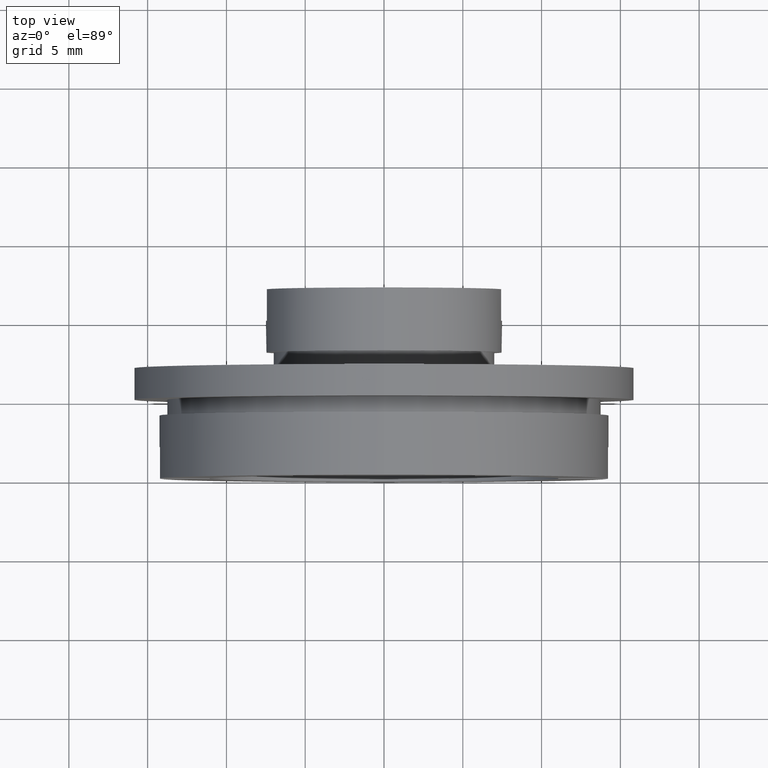
[diagram: clean part render]
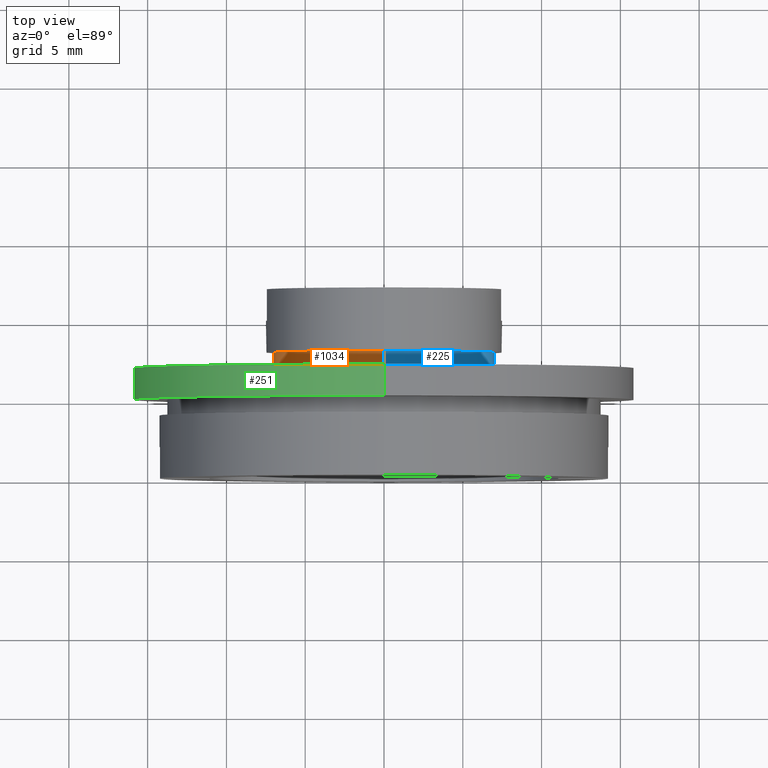
[diagram: same view with three faces highlighted in distinct colors, each labeled with its STEP entity id]
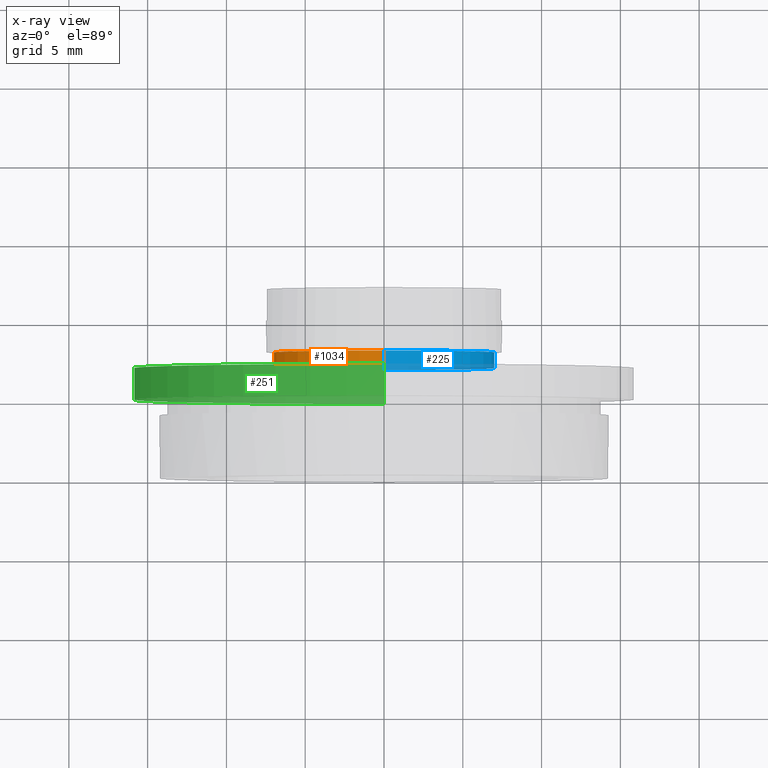
[diagram: x-ray of the same camera — body ghosted, the three highlighted faces saturated]
A machine part, top view with three faces highlighted in distinct colors.
The next image is the same camera in x-ray (body ghosted, the three faces saturated) — at least one of them is partly hidden behind the body in this view.
Their STEP definitions:

[orange] entity #1034 — the highlighted cylindrical surface (partial cylindrical patch) has radius 7 mm, axis along (-0, 1, -0).
#20 = CARTESIAN_POINT ( 'NONE',  ( 0.0000000000000000000, 22.67749945107591400, 0.0000000000000000000 ) ) ;
#31 = ORIENTED_EDGE ( 'NONE', *, *, #499, .F. ) ;
#55 = CIRCLE ( 'NONE', #831, 6.999999999999999100 ) ;
#69 = EDGE_CURVE ( 'NONE', #726, #1145, #1326, .T. ) ;
#83 = DIRECTION ( 'NONE',  ( -0.0000000000000000000, 1.000000000000000000, -0.0000000000000000000 ) ) ;
#166 = LINE ( 'NONE', #1010, #196 ) ;
#170 = DIRECTION ( 'NONE',  ( -0.0000000000000000000, 1.000000000000000000, -0.0000000000000000000 ) ) ;
#185 = CARTESIAN_POINT ( 'NONE',  ( 8.572527594031471200E-016, 7.000000000000002700, -6.999999999999998200 ) ) ;
#194 = CYLINDRICAL_SURFACE ( 'NONE', #974, 6.999999999999999100 ) ;
#196 = VECTOR ( 'NONE', #83, 1000.000000000000000 ) ;
#221 = CARTESIAN_POINT ( 'NONE',  ( 0.0000000000000000000, 7.000000000000002700, 0.0000000000000000000 ) ) ;
#240 = CARTESIAN_POINT ( 'NONE',  ( 0.0000000000000000000, 8.000000000000000000, 0.0000000000000000000 ) ) ;
#241 = ORIENTED_EDGE ( 'NONE', *, *, #69, .T. ) ;
#288 = EDGE_CURVE ( 'NONE', #726, #1121, #166, .T. ) ;
#291 = ORIENTED_EDGE ( 'NONE', *, *, #1272, .T. ) ;
#369 = FACE_OUTER_BOUND ( 'NONE', #1208, .T. ) ;
#424 = DIRECTION ( 'NONE',  ( -0.0000000000000000000, 1.000000000000000000, -0.0000000000000000000 ) ) ;
#428 = CARTESIAN_POINT ( 'NONE',  ( 0.0000000000000000000, 22.67749945107591400, 6.999999999999999100 ) ) ;
#446 = CARTESIAN_POINT ( 'NONE',  ( 0.0000000000000000000, 8.000000000000000000, 6.999999999999999100 ) ) ;
#499 = EDGE_CURVE ( 'NONE', #1121, #1299, #55, .T. ) ;
#648 = DIRECTION ( 'NONE',  ( 0.0000000000000000000, 0.0000000000000000000, 1.000000000000000000 ) ) ;
#690 = LINE ( 'NONE', #428, #790 ) ;
#726 = VERTEX_POINT ( 'NONE', #185 ) ;
#790 = VECTOR ( 'NONE', #424, 1000.000000000000000 ) ;
#831 = AXIS2_PLACEMENT_3D ( 'NONE', #240, #170, #1308 ) ;
#952 = CARTESIAN_POINT ( 'NONE',  ( 0.0000000000000000000, 7.000000000000002700, 6.999999999999998200 ) ) ;
#974 = AXIS2_PLACEMENT_3D ( 'NONE', #20, #1178, #648 ) ;
#997 = DIRECTION ( 'NONE',  ( -0.0000000000000000000, 1.000000000000000000, -0.0000000000000000000 ) ) ;
#1010 = CARTESIAN_POINT ( 'NONE',  ( 8.572527594031472200E-016, 22.67749945107591400, -6.999999999999999100 ) ) ;
#1034 = ADVANCED_FACE ( 'NONE', ( #369 ), #194, .T. ) ;
#1051 = AXIS2_PLACEMENT_3D ( 'NONE', #221, #997, #1282 ) ;
#1121 = VERTEX_POINT ( 'NONE', #1255 ) ;
#1145 = VERTEX_POINT ( 'NONE', #952 ) ;
#1178 = DIRECTION ( 'NONE',  ( -0.0000000000000000000, 1.000000000000000000, -0.0000000000000000000 ) ) ;
#1208 = EDGE_LOOP ( 'NONE', ( #1290, #241, #291, #31 ) ) ;
#1255 = CARTESIAN_POINT ( 'NONE',  ( 8.572527594031472200E-016, 8.000000000000000000, -6.999999999999999100 ) ) ;
#1272 = EDGE_CURVE ( 'NONE', #1145, #1299, #690, .T. ) ;
#1282 = DIRECTION ( 'NONE',  ( 0.0000000000000000000, 0.0000000000000000000, 1.000000000000000000 ) ) ;
#1290 = ORIENTED_EDGE ( 'NONE', *, *, #288, .F. ) ;
#1299 = VERTEX_POINT ( 'NONE', #446 ) ;
#1308 = DIRECTION ( 'NONE',  ( 0.0000000000000000000, 0.0000000000000000000, 1.000000000000000000 ) ) ;
#1326 = CIRCLE ( 'NONE', #1051, 6.999999999999998200 ) ;

[blue] entity #225 — the highlighted cylindrical surface (partial cylindrical patch) has radius 7 mm, axis along (-0, 1, -0).
#83 = DIRECTION ( 'NONE',  ( -0.0000000000000000000, 1.000000000000000000, -0.0000000000000000000 ) ) ;
#99 = AXIS2_PLACEMENT_3D ( 'NONE', #756, #463, #381 ) ;
#166 = LINE ( 'NONE', #1010, #196 ) ;
#185 = CARTESIAN_POINT ( 'NONE',  ( 8.572527594031471200E-016, 7.000000000000002700, -6.999999999999998200 ) ) ;
#196 = VECTOR ( 'NONE', #83, 1000.000000000000000 ) ;
#205 = CIRCLE ( 'NONE', #1268, 6.999999999999999100 ) ;
#225 = ADVANCED_FACE ( 'NONE', ( #1216 ), #956, .T. ) ;
#239 = ORIENTED_EDGE ( 'NONE', *, *, #842, .F. ) ;
#257 = DIRECTION ( 'NONE',  ( -0.0000000000000000000, 1.000000000000000000, -0.0000000000000000000 ) ) ;
#270 = ORIENTED_EDGE ( 'NONE', *, *, #480, .T. ) ;
#288 = EDGE_CURVE ( 'NONE', #726, #1121, #166, .T. ) ;
#293 = EDGE_LOOP ( 'NONE', ( #270, #740, #239, #389 ) ) ;
#381 = DIRECTION ( 'NONE',  ( 0.0000000000000000000, 0.0000000000000000000, 1.000000000000000000 ) ) ;
#389 = ORIENTED_EDGE ( 'NONE', *, *, #1272, .F. ) ;
#424 = DIRECTION ( 'NONE',  ( -0.0000000000000000000, 1.000000000000000000, -0.0000000000000000000 ) ) ;
#428 = CARTESIAN_POINT ( 'NONE',  ( 0.0000000000000000000, 22.67749945107591400, 6.999999999999999100 ) ) ;
#446 = CARTESIAN_POINT ( 'NONE',  ( 0.0000000000000000000, 8.000000000000000000, 6.999999999999999100 ) ) ;
#463 = DIRECTION ( 'NONE',  ( -0.0000000000000000000, 1.000000000000000000, -0.0000000000000000000 ) ) ;
#480 = EDGE_CURVE ( 'NONE', #1145, #726, #936, .T. ) ;
#690 = LINE ( 'NONE', #428, #790 ) ;
#726 = VERTEX_POINT ( 'NONE', #185 ) ;
#739 = AXIS2_PLACEMENT_3D ( 'NONE', #992, #1279, #886 ) ;
#740 = ORIENTED_EDGE ( 'NONE', *, *, #288, .T. ) ;
#756 = CARTESIAN_POINT ( 'NONE',  ( 0.0000000000000000000, 22.67749945107591400, 0.0000000000000000000 ) ) ;
#790 = VECTOR ( 'NONE', #424, 1000.000000000000000 ) ;
#842 = EDGE_CURVE ( 'NONE', #1299, #1121, #205, .T. ) ;
#886 = DIRECTION ( 'NONE',  ( 0.0000000000000000000, 0.0000000000000000000, 1.000000000000000000 ) ) ;
#917 = CARTESIAN_POINT ( 'NONE',  ( 0.0000000000000000000, 8.000000000000000000, 0.0000000000000000000 ) ) ;
#936 = CIRCLE ( 'NONE', #739, 6.999999999999998200 ) ;
#952 = CARTESIAN_POINT ( 'NONE',  ( 0.0000000000000000000, 7.000000000000002700, 6.999999999999998200 ) ) ;
#956 = CYLINDRICAL_SURFACE ( 'NONE', #99, 6.999999999999999100 ) ;
#992 = CARTESIAN_POINT ( 'NONE',  ( 0.0000000000000000000, 7.000000000000002700, 0.0000000000000000000 ) ) ;
#1010 = CARTESIAN_POINT ( 'NONE',  ( 8.572527594031472200E-016, 22.67749945107591400, -6.999999999999999100 ) ) ;
#1121 = VERTEX_POINT ( 'NONE', #1255 ) ;
#1145 = VERTEX_POINT ( 'NONE', #952 ) ;
#1150 = DIRECTION ( 'NONE',  ( 0.0000000000000000000, 0.0000000000000000000, 1.000000000000000000 ) ) ;
#1216 = FACE_OUTER_BOUND ( 'NONE', #293, .T. ) ;
#1255 = CARTESIAN_POINT ( 'NONE',  ( 8.572527594031472200E-016, 8.000000000000000000, -6.999999999999999100 ) ) ;
#1268 = AXIS2_PLACEMENT_3D ( 'NONE', #917, #257, #1150 ) ;
#1272 = EDGE_CURVE ( 'NONE', #1145, #1299, #690, .T. ) ;
#1279 = DIRECTION ( 'NONE',  ( -0.0000000000000000000, 1.000000000000000000, -0.0000000000000000000 ) ) ;
#1299 = VERTEX_POINT ( 'NONE', #446 ) ;

[green] entity #251 — the highlighted cylindrical surface (partial cylindrical patch) has radius 15.875 mm, axis along (-0, 1, -0).
#70 = FACE_OUTER_BOUND ( 'NONE', #747, .T. ) ;
#76 = LINE ( 'NONE', #135, #147 ) ;
#89 = CYLINDRICAL_SURFACE ( 'NONE', #1038, 15.87499999999999600 ) ;
#100 = EDGE_CURVE ( 'NONE', #749, #667, #349, .T. ) ;
#135 = CARTESIAN_POINT ( 'NONE',  ( 1.944126793646422800E-015, 22.67749945107591400, -15.87499999999999600 ) ) ;
#138 = CARTESIAN_POINT ( 'NONE',  ( 1.944126793646422800E-015, 5.000000000000000900, -15.87499999999999600 ) ) ;
#139 = DIRECTION ( 'NONE',  ( 0.0000000000000000000, 0.0000000000000000000, 1.000000000000000000 ) ) ;
#147 = VECTOR ( 'NONE', #570, 1000.000000000000000 ) ;
#200 = CARTESIAN_POINT ( 'NONE',  ( 0.0000000000000000000, 6.999999999999999100, 15.87499999999999600 ) ) ;
#251 = ADVANCED_FACE ( 'NONE', ( #70 ), #89, .T. ) ;
#262 = CARTESIAN_POINT ( 'NONE',  ( 0.0000000000000000000, 6.999999999999999100, 0.0000000000000000000 ) ) ;
#284 = LINE ( 'NONE', #1336, #1297 ) ;
#286 = EDGE_CURVE ( 'NONE', #749, #505, #76, .T. ) ;
#349 = CIRCLE ( 'NONE', #813, 15.87499999999999600 ) ;
#358 = ORIENTED_EDGE ( 'NONE', *, *, #100, .T. ) ;
#379 = CARTESIAN_POINT ( 'NONE',  ( 1.944126793646422800E-015, 6.999999999999999100, -15.87499999999999600 ) ) ;
#505 = VERTEX_POINT ( 'NONE', #379 ) ;
#507 = VERTEX_POINT ( 'NONE', #200 ) ;
#512 = DIRECTION ( 'NONE',  ( 0.0000000000000000000, 0.0000000000000000000, 1.000000000000000000 ) ) ;
#570 = DIRECTION ( 'NONE',  ( -0.0000000000000000000, 1.000000000000000000, -0.0000000000000000000 ) ) ;
#608 = CARTESIAN_POINT ( 'NONE',  ( 0.0000000000000000000, 22.67749945107591400, 0.0000000000000000000 ) ) ;
#657 = ORIENTED_EDGE ( 'NONE', *, *, #286, .F. ) ;
#667 = VERTEX_POINT ( 'NONE', #1111 ) ;
#689 = CIRCLE ( 'NONE', #1323, 15.87499999999999600 ) ;
#699 = ORIENTED_EDGE ( 'NONE', *, *, #816, .T. ) ;
#702 = ORIENTED_EDGE ( 'NONE', *, *, #718, .F. ) ;
#718 = EDGE_CURVE ( 'NONE', #505, #507, #689, .T. ) ;
#747 = EDGE_LOOP ( 'NONE', ( #657, #358, #699, #702 ) ) ;
#749 = VERTEX_POINT ( 'NONE', #138 ) ;
#805 = DIRECTION ( 'NONE',  ( 0.0000000000000000000, 0.0000000000000000000, 1.000000000000000000 ) ) ;
#813 = AXIS2_PLACEMENT_3D ( 'NONE', #1211, #1217, #139 ) ;
#816 = EDGE_CURVE ( 'NONE', #667, #507, #284, .T. ) ;
#849 = DIRECTION ( 'NONE',  ( -0.0000000000000000000, 1.000000000000000000, -0.0000000000000000000 ) ) ;
#946 = DIRECTION ( 'NONE',  ( -0.0000000000000000000, 1.000000000000000000, -0.0000000000000000000 ) ) ;
#1038 = AXIS2_PLACEMENT_3D ( 'NONE', #608, #849, #805 ) ;
#1111 = CARTESIAN_POINT ( 'NONE',  ( 0.0000000000000000000, 5.000000000000000900, 15.87499999999999600 ) ) ;
#1211 = CARTESIAN_POINT ( 'NONE',  ( 0.0000000000000000000, 5.000000000000000900, 0.0000000000000000000 ) ) ;
#1217 = DIRECTION ( 'NONE',  ( -0.0000000000000000000, 1.000000000000000000, -0.0000000000000000000 ) ) ;
#1231 = DIRECTION ( 'NONE',  ( -0.0000000000000000000, 1.000000000000000000, -0.0000000000000000000 ) ) ;
#1297 = VECTOR ( 'NONE', #946, 1000.000000000000000 ) ;
#1323 = AXIS2_PLACEMENT_3D ( 'NONE', #262, #1231, #512 ) ;
#1336 = CARTESIAN_POINT ( 'NONE',  ( 0.0000000000000000000, 22.67749945107591400, 15.87499999999999600 ) ) ;